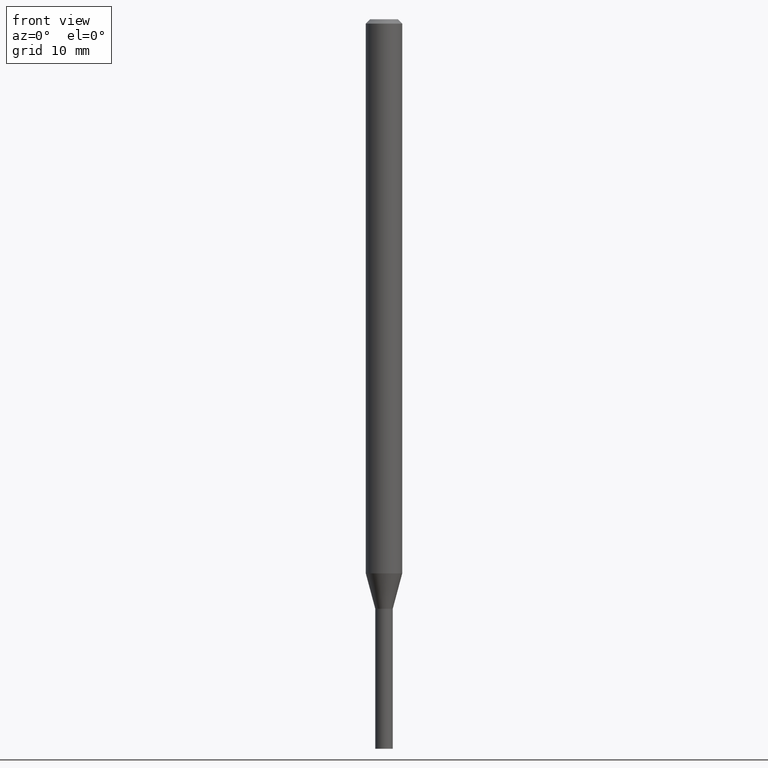
[diagram: clean part render]
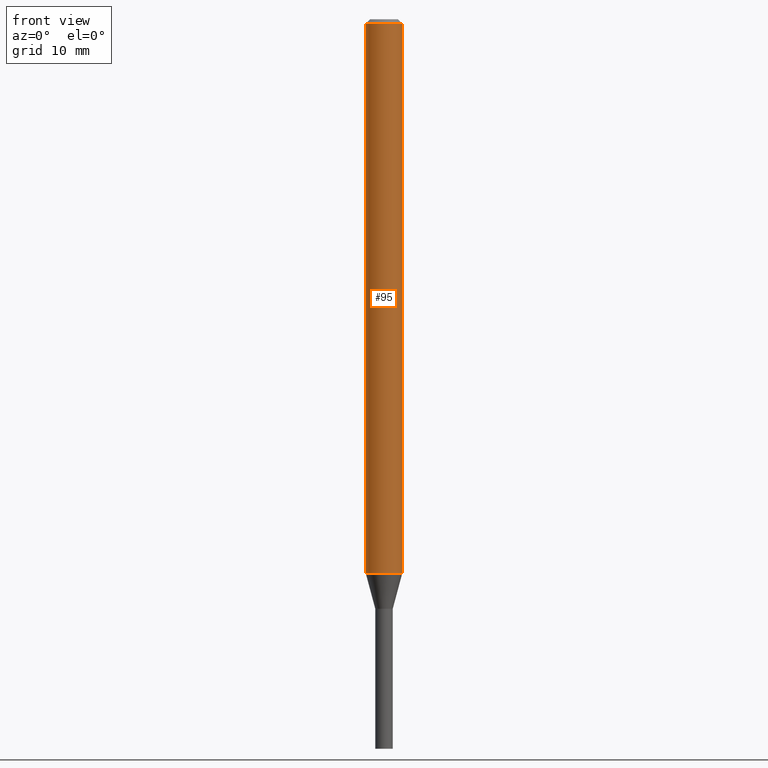
[diagram: same view with one face highlighted and labeled with its STEP entity id]
A machine part, front view. The second image highlights one B-rep face of the part: STEP entity #95.
In plain terms, the highlighted cylindrical surface (edge-blend (fillet) strip) has radius 1.5875 mm, axis along (-0, 0, 1).
Its self-contained STEP definition (entity closure, byte-faithful):
#7 = CARTESIAN_POINT ( 'NONE',  ( -0.06250000000000000000, -2.896749283981420152E-15, -0.01499999999999999944 ) ) ;
#13 = VERTEX_POINT ( 'NONE', #7 ) ;
#27 = EDGE_CURVE ( 'NONE', #386, #382, #430, .T. ) ;
#36 = AXIS2_PLACEMENT_3D ( 'NONE', #71, #363, #226 ) ;
#50 = DIRECTION ( 'NONE',  ( -2.445468806185136597E-29, 3.491481338843145583E-15, 1.000000000000000000 ) ) ;
#63 = ORIENTED_EDGE ( 'NONE', *, *, #407, .F. ) ;
#66 = LINE ( 'NONE', #294, #185 ) ;
#68 = DIRECTION ( 'NONE',  ( -2.445468806185136877E-29, 3.491481338843145188E-15, 1.000000000000000000 ) ) ;
#71 = CARTESIAN_POINT ( 'NONE',  ( 0.000000000000000000, 0.000000000000000000, 0.000000000000000000 ) ) ;
#87 = VECTOR ( 'NONE', #332, 39.37007874015748143 ) ;
#95 = ADVANCED_FACE ( 'NONE', ( #108 ), #255, .T. ) ;
#107 = EDGE_CURVE ( 'NONE', #353, #13, #66, .T. ) ;
#108 = FACE_OUTER_BOUND ( 'NONE', #124, .T. ) ;
#124 = EDGE_LOOP ( 'NONE', ( #139, #169, #328, #63 ) ) ;
#139 = ORIENTED_EDGE ( 'NONE', *, *, #107, .F. ) ;
#148 = CIRCLE ( 'NONE', #429, 0.06250000000000000000 ) ;
#162 = DIRECTION ( 'NONE',  ( 1.000000000000000000, -6.982962677686262766E-15, 0.000000000000000000 ) ) ;
#169 = ORIENTED_EDGE ( 'NONE', *, *, #322, .T. ) ;
#170 = CARTESIAN_POINT ( 'NONE',  ( 0.06250000000000000000, -4.888073874380388472E-16, -0.01499999999999999944 ) ) ;
#173 = DIRECTION ( 'NONE',  ( -2.445468806185136597E-29, 3.491481338843145583E-15, 1.000000000000000000 ) ) ;
#185 = VECTOR ( 'NONE', #68, 39.37007874015748143 ) ;
#226 = DIRECTION ( 'NONE',  ( 1.000000000000000000, -6.982962677686266711E-15, 4.876176775795935793E-29 ) ) ;
#241 = CARTESIAN_POINT ( 'NONE',  ( -0.06250000000000000000, -6.185215557730254658E-15, -1.898708348754012398 ) ) ;
#249 = CARTESIAN_POINT ( 'NONE',  ( 3.668203209277705088E-31, -5.237222008264718399E-17, -0.01499999999999999944 ) ) ;
#255 = CYLINDRICAL_SURFACE ( 'NONE', #36, 0.06250000000000000000 ) ;
#294 = CARTESIAN_POINT ( 'NONE',  ( -0.06250000000000000000, 4.440892098500626162E-16, -3.074334431409316114E-30 ) ) ;
#303 = CARTESIAN_POINT ( 'NONE',  ( 4.643232038921227180E-29, -6.629304767580318063E-15, -1.898708348754012398 ) ) ;
#322 = EDGE_CURVE ( 'NONE', #353, #386, #148, .T. ) ;
#328 = ORIENTED_EDGE ( 'NONE', *, *, #27, .T. ) ;
#332 = DIRECTION ( 'NONE',  ( -2.445468806185136877E-29, 3.491481338843145188E-15, 1.000000000000000000 ) ) ;
#347 = CARTESIAN_POINT ( 'NONE',  ( 0.06250000000000000000, -7.065739934935709732E-15, -1.898708348754012398 ) ) ;
#353 = VERTEX_POINT ( 'NONE', #241 ) ;
#363 = DIRECTION ( 'NONE',  ( -2.445468806185136597E-29, 3.491481338843145583E-15, 1.000000000000000000 ) ) ;
#382 = VERTEX_POINT ( 'NONE', #170 ) ;
#386 = VERTEX_POINT ( 'NONE', #347 ) ;
#387 = AXIS2_PLACEMENT_3D ( 'NONE', #249, #173, #389 ) ;
#389 = DIRECTION ( 'NONE',  ( 1.000000000000000000, -6.982962677686266711E-15, 0.000000000000000000 ) ) ;
#397 = CARTESIAN_POINT ( 'NONE',  ( 0.06250000000000000000, -4.364351673553916694E-16, 3.047610484872459871E-30 ) ) ;
#407 = EDGE_CURVE ( 'NONE', #13, #382, #445, .T. ) ;
#429 = AXIS2_PLACEMENT_3D ( 'NONE', #303, #50, #162 ) ;
#430 = LINE ( 'NONE', #397, #87 ) ;
#445 = CIRCLE ( 'NONE', #387, 0.06250000000000000000 ) ;